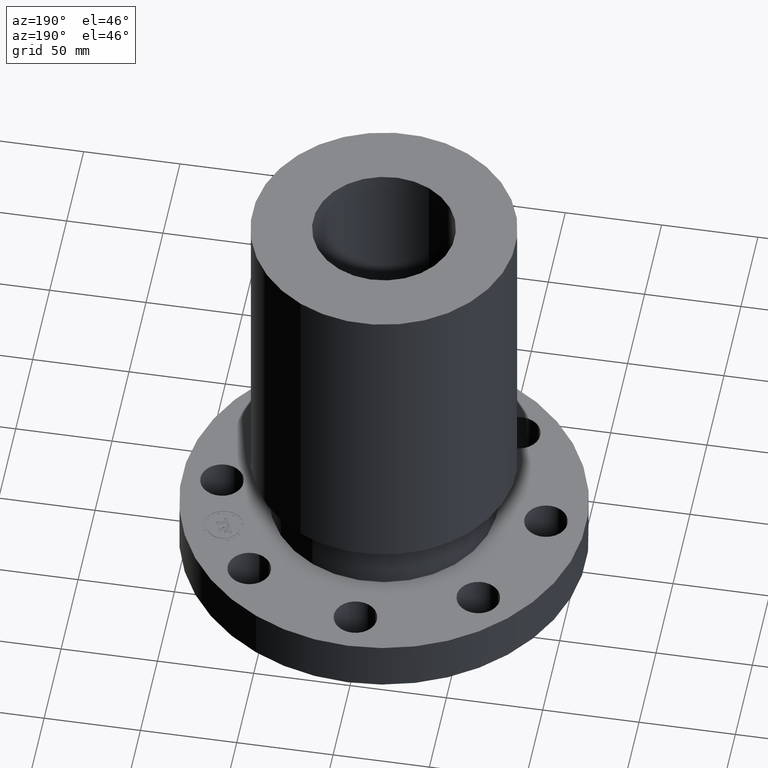
[diagram: clean part render]
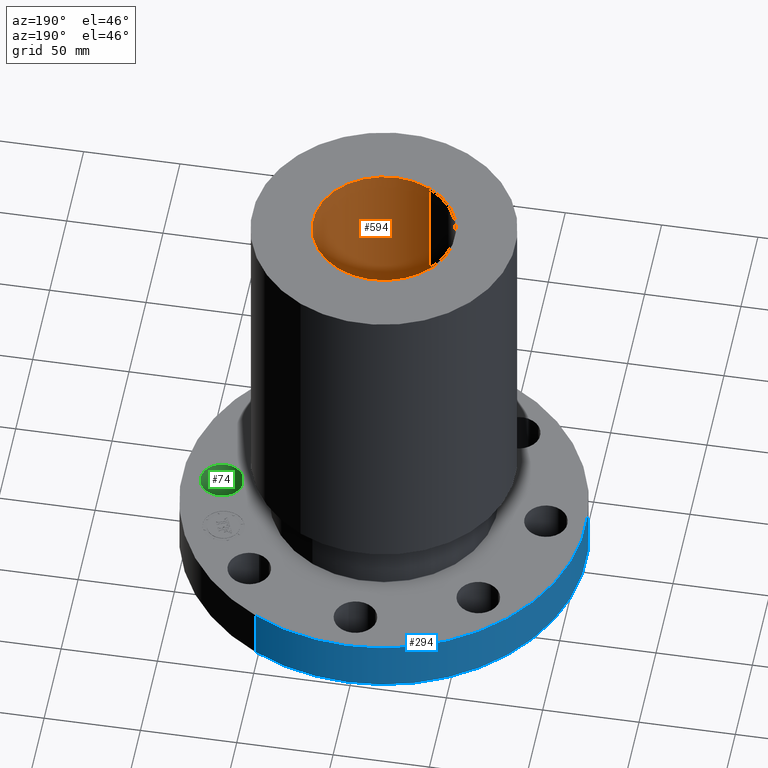
[diagram: same view with three faces highlighted in distinct colors, each labeled with its STEP entity id]
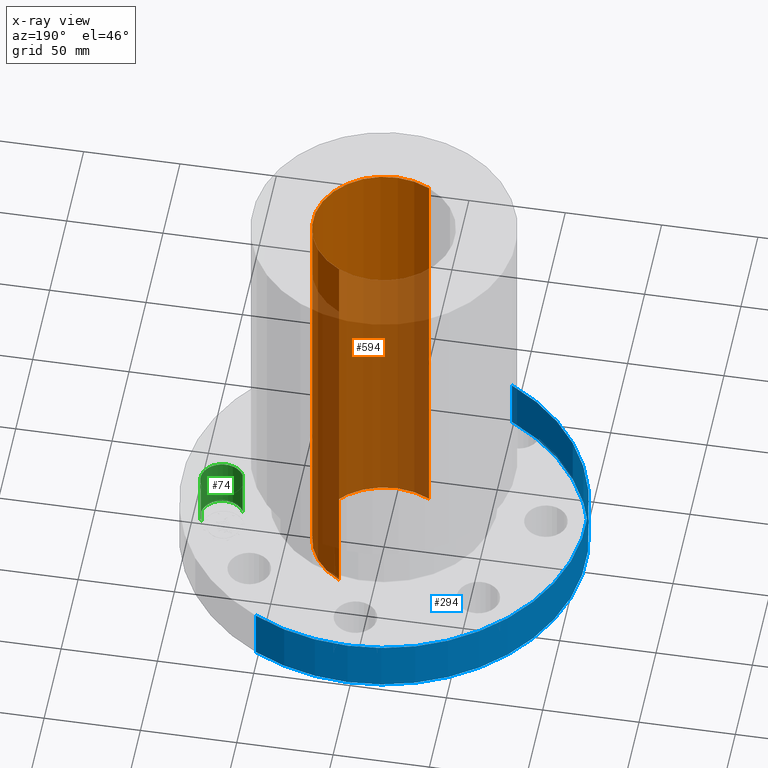
[diagram: x-ray of the same camera — body ghosted, the three highlighted faces saturated]
A machine part, auxiliary view with three faces highlighted in distinct colors.
The next image is the same camera in x-ray (body ghosted, the three faces saturated) — at least one of them is partly hidden behind the body in this view.
Their STEP definitions:

[orange] entity #594 — the highlighted cylindrical surface (partial cylindrical patch) has radius 36.83 mm, axis along (0, 0, -1).
#556=AXIS2_PLACEMENT_3D('Circle Axis2P3D',#554,#555,$) ;
#567=AXIS2_PLACEMENT_3D('Cylinder Axis2P3D',#564,#565,#566) ;
#578=AXIS2_PLACEMENT_3D('Circle Axis2P3D',#576,#577,$) ;
#549=CARTESIAN_POINT('Vertex',(-0.695167030979,-1.27249471475,8.93750000004)) ;
#551=CARTESIAN_POINT('Vertex',(0.695167030979,1.27249471475,8.93750000004)) ;
#554=CARTESIAN_POINT('Axis2P3D Location',(0.,0.,8.93750000004)) ;
#564=CARTESIAN_POINT('Axis2P3D Location',(0.,0.,4.43750000002)) ;
#569=CARTESIAN_POINT('Line Origine',(0.695167030979,1.27249471475,4.43750000002)) ;
#573=CARTESIAN_POINT('Vertex',(0.695167030979,1.27249471475,-0.0625000000002)) ;
#576=CARTESIAN_POINT('Axis2P3D Location',(0.,0.,-0.0625000000003)) ;
#580=CARTESIAN_POINT('Vertex',(-0.695167030979,-1.27249471475,-0.0625000000002)) ;
#583=CARTESIAN_POINT('Line Origine',(-0.695167030979,-1.27249471475,4.43750000002)) ;
#555=DIRECTION('Axis2P3D Direction',(0.,0.,-0.0393700787402)) ;
#565=DIRECTION('Axis2P3D Direction',(0.,0.,-0.0393700787402)) ;
#566=DIRECTION('Axis2P3D XDirection',(-0.0188750212049,-0.0345504945626,0.)) ;
#570=DIRECTION('Vector Direction',(0.,0.,-0.0393700787402)) ;
#577=DIRECTION('Axis2P3D Direction',(0.,0.,-0.0393700787402)) ;
#584=DIRECTION('Vector Direction',(0.,0.,-0.0393700787402)) ;
#571=VECTOR('Line Direction',#570,0.0393700787402) ;
#585=VECTOR('Line Direction',#584,0.0393700787402) ;
#589=ORIENTED_EDGE('',*,*,#558,.F.) ;
#590=ORIENTED_EDGE('',*,*,#575,.T.) ;
#591=ORIENTED_EDGE('',*,*,#582,.T.) ;
#592=ORIENTED_EDGE('',*,*,#587,.F.) ;
#594=ADVANCED_FACE('PartBody',(#593),#568,.F.) ;
#557=CIRCLE('generated circle',#556,1.45000000001) ;
#579=CIRCLE('generated circle',#578,1.45000000001) ;
#568=CYLINDRICAL_SURFACE('generated cylinder',#567,1.45000000001) ;
#558=EDGE_CURVE('',#552,#550,#557,.T.) ;
#575=EDGE_CURVE('',#552,#574,#572,.T.) ;
#582=EDGE_CURVE('',#574,#581,#579,.T.) ;
#587=EDGE_CURVE('',#550,#581,#586,.T.) ;
#588=EDGE_LOOP('',(#589,#590,#591,#592)) ;
#593=FACE_OUTER_BOUND('',#588,.T.) ;
#572=LINE('Line',#569,#571) ;
#586=LINE('Line',#583,#585) ;
#550=VERTEX_POINT('',#549) ;
#552=VERTEX_POINT('',#551) ;
#574=VERTEX_POINT('',#573) ;
#581=VERTEX_POINT('',#580) ;

[blue] entity #294 — the highlighted cylindrical surface (partial cylindrical patch) has radius 104.775 mm, axis along (0, 0, -1).
#82=AXIS2_PLACEMENT_3D('Circle Axis2P3D',#80,#81,$) ;
#267=AXIS2_PLACEMENT_3D('Cylinder Axis2P3D',#264,#265,#266) ;
#278=AXIS2_PLACEMENT_3D('Circle Axis2P3D',#276,#277,$) ;
#80=CARTESIAN_POINT('Axis2P3D Location',(0.,0.,0.)) ;
#84=CARTESIAN_POINT('Vertex',(-1.97763034675,-3.62002806781,5.59482469102E-016)) ;
#86=CARTESIAN_POINT('Vertex',(1.97763034675,3.62002806781,5.59482469102E-016)) ;
#264=CARTESIAN_POINT('Axis2P3D Location',(0.,0.,4.43750000002)) ;
#269=CARTESIAN_POINT('Line Origine',(-1.97763034675,-3.62002806781,0.528750000002)) ;
#273=CARTESIAN_POINT('Vertex',(-1.97763034675,-3.62002806781,1.0575)) ;
#276=CARTESIAN_POINT('Axis2P3D Location',(0.,0.,1.0575)) ;
#280=CARTESIAN_POINT('Vertex',(1.97763034675,3.62002806781,1.0575)) ;
#283=CARTESIAN_POINT('Line Origine',(1.97763034675,3.62002806781,0.528750000002)) ;
#81=DIRECTION('Axis2P3D Direction',(0.,0.,-0.0393700787402)) ;
#265=DIRECTION('Axis2P3D Direction',(0.,0.,-0.0393700787402)) ;
#266=DIRECTION('Axis2P3D XDirection',(0.0188750212049,0.0345504945626,0.)) ;
#270=DIRECTION('Vector Direction',(0.,0.,-0.0393700787402)) ;
#277=DIRECTION('Axis2P3D Direction',(0.,0.,-0.0393700787402)) ;
#284=DIRECTION('Vector Direction',(0.,0.,-0.0393700787402)) ;
#271=VECTOR('Line Direction',#270,0.0393700787402) ;
#285=VECTOR('Line Direction',#284,0.0393700787402) ;
#289=ORIENTED_EDGE('',*,*,#88,.F.) ;
#290=ORIENTED_EDGE('',*,*,#275,.T.) ;
#291=ORIENTED_EDGE('',*,*,#282,.T.) ;
#292=ORIENTED_EDGE('',*,*,#287,.F.) ;
#294=ADVANCED_FACE('PartBody',(#293),#268,.T.) ;
#83=CIRCLE('generated circle',#82,4.12500000002) ;
#279=CIRCLE('generated circle',#278,4.12500000002) ;
#268=CYLINDRICAL_SURFACE('generated cylinder',#267,4.12500000002) ;
#88=EDGE_CURVE('',#85,#87,#83,.T.) ;
#275=EDGE_CURVE('',#85,#274,#272,.F.) ;
#282=EDGE_CURVE('',#274,#281,#279,.T.) ;
#287=EDGE_CURVE('',#87,#281,#286,.F.) ;
#288=EDGE_LOOP('',(#289,#290,#291,#292)) ;
#293=FACE_OUTER_BOUND('',#288,.T.) ;
#272=LINE('Line',#269,#271) ;
#286=LINE('Line',#283,#285) ;
#85=VERTEX_POINT('',#84) ;
#87=VERTEX_POINT('',#86) ;
#274=VERTEX_POINT('',#273) ;
#281=VERTEX_POINT('',#280) ;

[green] entity #74 — the highlighted cylindrical surface (edge-blend (fillet) strip) has radius 11.176 mm, axis along (0, -0, 1).
#38=AXIS2_PLACEMENT_3D('Cylinder Axis2P3D',#35,#36,#37) ;
#51=AXIS2_PLACEMENT_3D('Circle Axis2P3D',#49,#50,$) ;
#65=AXIS2_PLACEMENT_3D('Circle Axis2P3D',#63,#64,$) ;
#35=CARTESIAN_POINT('Axis2P3D Location',(3.31000000001,0.,0.00393700787402)) ;
#40=CARTESIAN_POINT('Line Origine',(2.92386367278,-0.210947236987,0.528750000002)) ;
#44=CARTESIAN_POINT('Vertex',(2.92386367278,-0.210947236987,1.0575)) ;
#46=CARTESIAN_POINT('Vertex',(2.92386367278,-0.210947236987,2.2401153548E-016)) ;
#49=CARTESIAN_POINT('Axis2P3D Location',(3.31000000001,0.,1.0575)) ;
#53=CARTESIAN_POINT('Vertex',(3.69613632725,0.210947236987,1.0575)) ;
#56=CARTESIAN_POINT('Line Origine',(3.69613632725,0.210947236987,0.528750000002)) ;
#60=CARTESIAN_POINT('Vertex',(3.69613632725,0.210947236987,2.2401153548E-016)) ;
#63=CARTESIAN_POINT('Axis2P3D Location',(3.31000000001,0.,0.)) ;
#36=DIRECTION('Axis2P3D Direction',(0.,-0.,0.0393700787402)) ;
#37=DIRECTION('Axis2P3D XDirection',(0.0345504945626,0.0188750212049,0.)) ;
#41=DIRECTION('Vector Direction',(0.,0.,0.0393700787402)) ;
#50=DIRECTION('Axis2P3D Direction',(0.,-0.,0.0393700787402)) ;
#57=DIRECTION('Vector Direction',(0.,0.,0.0393700787402)) ;
#64=DIRECTION('Axis2P3D Direction',(0.,-0.,0.0393700787402)) ;
#42=VECTOR('Line Direction',#41,0.0393700787402) ;
#58=VECTOR('Line Direction',#57,0.0393700787402) ;
#69=ORIENTED_EDGE('',*,*,#48,.F.) ;
#70=ORIENTED_EDGE('',*,*,#55,.F.) ;
#71=ORIENTED_EDGE('',*,*,#62,.T.) ;
#72=ORIENTED_EDGE('',*,*,#67,.T.) ;
#74=ADVANCED_FACE('PartBody',(#73),#39,.F.) ;
#52=CIRCLE('generated circle',#51,0.440000000002) ;
#66=CIRCLE('generated circle',#65,0.440000000002) ;
#39=CYLINDRICAL_SURFACE('generated cylinder',#38,0.440000000002) ;
#48=EDGE_CURVE('',#45,#47,#43,.F.) ;
#55=EDGE_CURVE('',#54,#45,#52,.F.) ;
#62=EDGE_CURVE('',#54,#61,#59,.F.) ;
#67=EDGE_CURVE('',#61,#47,#66,.F.) ;
#68=EDGE_LOOP('',(#69,#70,#71,#72)) ;
#73=FACE_OUTER_BOUND('',#68,.T.) ;
#43=LINE('Line',#40,#42) ;
#59=LINE('Line',#56,#58) ;
#45=VERTEX_POINT('',#44) ;
#47=VERTEX_POINT('',#46) ;
#54=VERTEX_POINT('',#53) ;
#61=VERTEX_POINT('',#60) ;